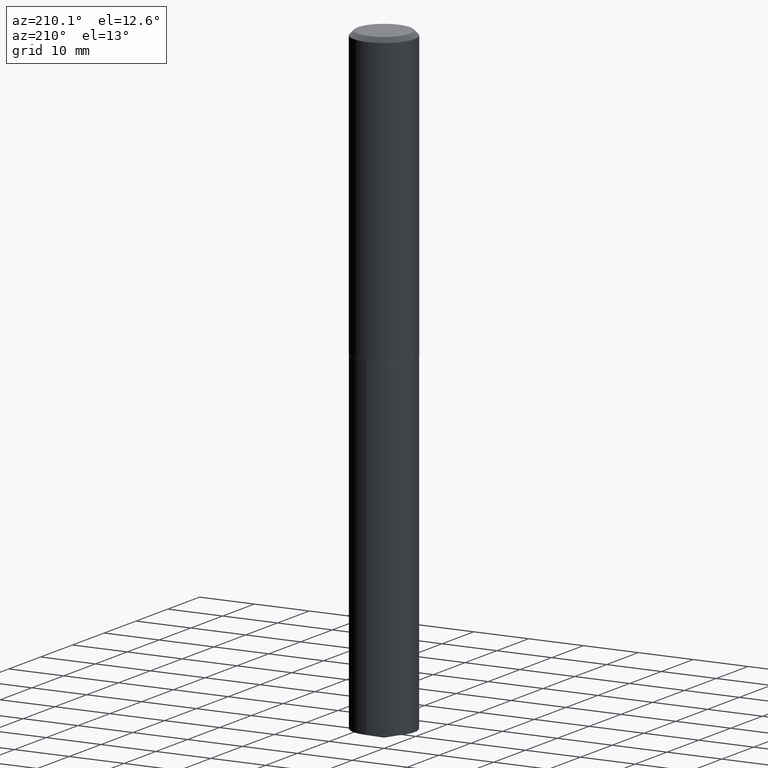
[diagram: clean part render]
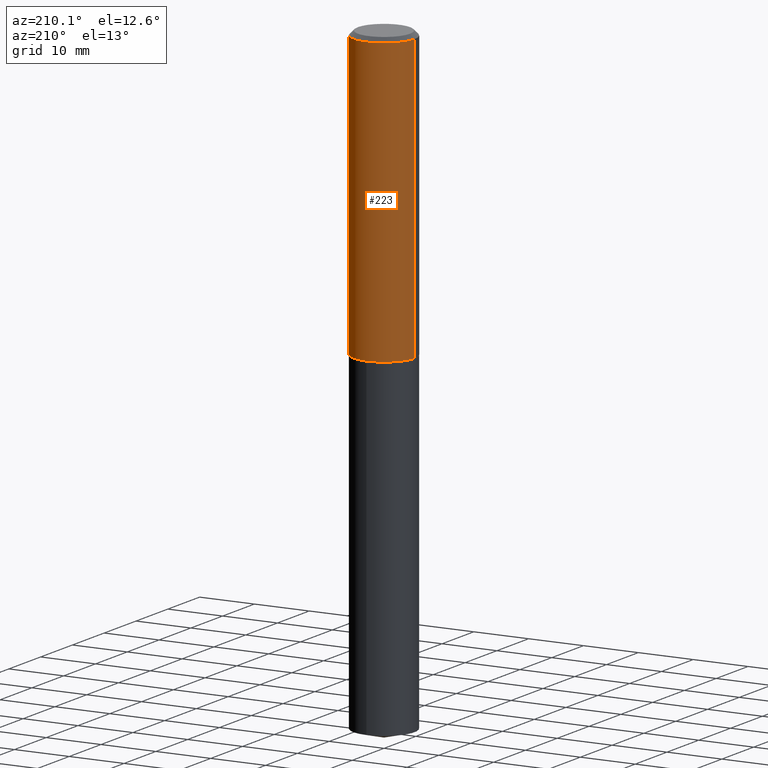
[diagram: same view with one face highlighted and labeled with its STEP entity id]
A machine part, auxiliary view. The second image highlights one B-rep face of the part: STEP entity #223.
In plain terms, the highlighted cylindrical surface (edge-blend (fillet) strip) has radius 5.5563 mm, axis along (-0, 0, 1).
Its self-contained STEP definition (entity closure, byte-faithful):
#13 = CARTESIAN_POINT ( 'NONE',  ( 0.2187500000000000833, -1.527523085743871435E-15, 1.066663669705361305E-29 ) ) ;
#17 = DIRECTION ( 'NONE',  ( -2.445468806185136597E-29, 3.491481338843145583E-15, 1.000000000000000000 ) ) ;
#41 = CYLINDRICAL_SURFACE ( 'NONE', #139, 0.2187500000000000833 ) ;
#43 = LINE ( 'NONE', #13, #247 ) ;
#53 = EDGE_CURVE ( 'NONE', #110, #306, #43, .T. ) ;
#55 = AXIS2_PLACEMENT_3D ( 'NONE', #56, #179, #291 ) ;
#56 = CARTESIAN_POINT ( 'NONE',  ( 7.642090019328598283E-31, -1.091087918388489651E-16, -0.03125000000000019429 ) ) ;
#58 = EDGE_CURVE ( 'NONE', #110, #188, #372, .T. ) ;
#59 = EDGE_LOOP ( 'NONE', ( #176, #362, #63, #154 ) ) ;
#63 = ORIENTED_EDGE ( 'NONE', *, *, #381, .F. ) ;
#73 = LINE ( 'NONE', #170, #82 ) ;
#79 = CARTESIAN_POINT ( 'NONE',  ( 0.2187500000000000000, -1.636631877582719746E-15, -0.03125000000000019429 ) ) ;
#82 = VECTOR ( 'NONE', #316, 39.37007874015748143 ) ;
#97 = CIRCLE ( 'NONE', #55, 0.2187500000000000000 ) ;
#110 = VERTEX_POINT ( 'NONE', #220 ) ;
#139 = AXIS2_PLACEMENT_3D ( 'NONE', #282, #313, #165 ) ;
#140 = DIRECTION ( 'NONE',  ( 1.000000000000000000, -6.982962677686265133E-15, 0.000000000000000000 ) ) ;
#154 = ORIENTED_EDGE ( 'NONE', *, *, #53, .F. ) ;
#165 = DIRECTION ( 'NONE',  ( 1.000000000000000000, -6.982962677686266711E-15, 4.876176775795935793E-29 ) ) ;
#170 = CARTESIAN_POINT ( 'NONE',  ( -0.2187500000000000833, 1.554312234475219748E-15, -1.076017050993261043E-29 ) ) ;
#176 = ORIENTED_EDGE ( 'NONE', *, *, #58, .T. ) ;
#179 = DIRECTION ( 'NONE',  ( -2.445468806185136597E-29, 3.491481338843145583E-15, 1.000000000000000000 ) ) ;
#188 = VERTEX_POINT ( 'NONE', #255 ) ;
#196 = DIRECTION ( 'NONE',  ( -2.445468806185136877E-29, 3.491481338843145188E-15, 1.000000000000000000 ) ) ;
#198 = FACE_OUTER_BOUND ( 'NONE', #59, .T. ) ;
#203 = EDGE_CURVE ( 'NONE', #188, #299, #73, .T. ) ;
#220 = CARTESIAN_POINT ( 'NONE',  ( 0.2187500000000002220, -8.726957606438439495E-15, -2.062000000000000277 ) ) ;
#223 = ADVANCED_FACE ( 'NONE', ( #198 ), #41, .T. ) ;
#227 = CARTESIAN_POINT ( 'NONE',  ( 5.042556678353752550E-29, -7.199434520694567863E-15, -2.062000000000000277 ) ) ;
#247 = VECTOR ( 'NONE', #196, 39.37007874015748143 ) ;
#255 = CARTESIAN_POINT ( 'NONE',  ( -0.2187500000000002220, -5.645122286219346340E-15, -2.062000000000000277 ) ) ;
#282 = CARTESIAN_POINT ( 'NONE',  ( 0.000000000000000000, 0.000000000000000000, 0.000000000000000000 ) ) ;
#291 = DIRECTION ( 'NONE',  ( 1.000000000000000000, -6.982962677686266711E-15, 0.000000000000000000 ) ) ;
#299 = VERTEX_POINT ( 'NONE', #356 ) ;
#306 = VERTEX_POINT ( 'NONE', #79 ) ;
#313 = DIRECTION ( 'NONE',  ( -2.445468806185136597E-29, 3.491481338843145583E-15, 1.000000000000000000 ) ) ;
#316 = DIRECTION ( 'NONE',  ( -2.445468806185136877E-29, 3.491481338843145188E-15, 1.000000000000000000 ) ) ;
#318 = AXIS2_PLACEMENT_3D ( 'NONE', #227, #17, #140 ) ;
#356 = CARTESIAN_POINT ( 'NONE',  ( -0.2187500000000000000, -2.099959421791488142E-15, -0.03125000000000019429 ) ) ;
#362 = ORIENTED_EDGE ( 'NONE', *, *, #203, .T. ) ;
#372 = CIRCLE ( 'NONE', #318, 0.2187500000000002220 ) ;
#381 = EDGE_CURVE ( 'NONE', #306, #299, #97, .T. ) ;